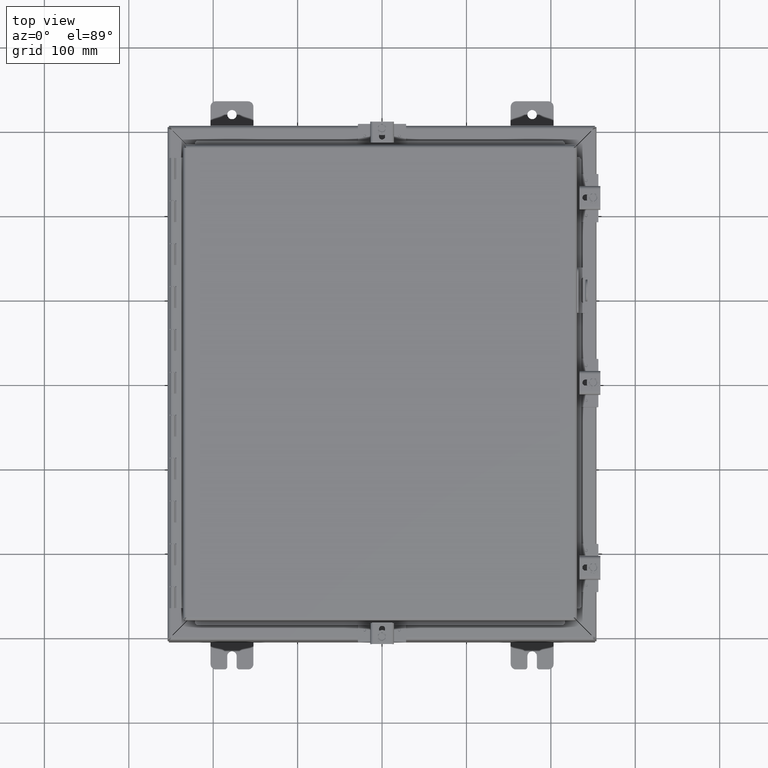
[diagram: clean part render]
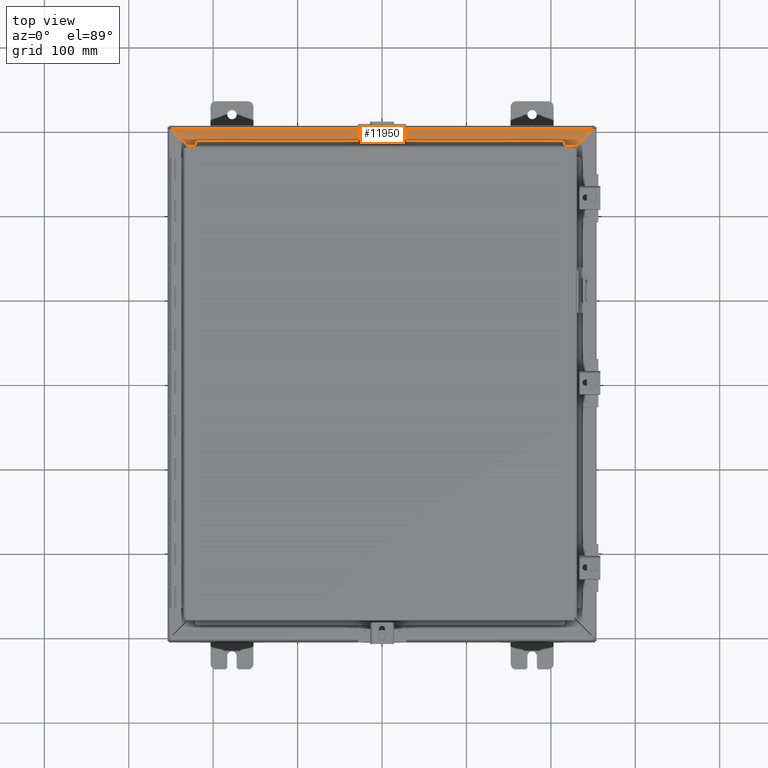
[diagram: same view with one face highlighted and labeled with its STEP entity id]
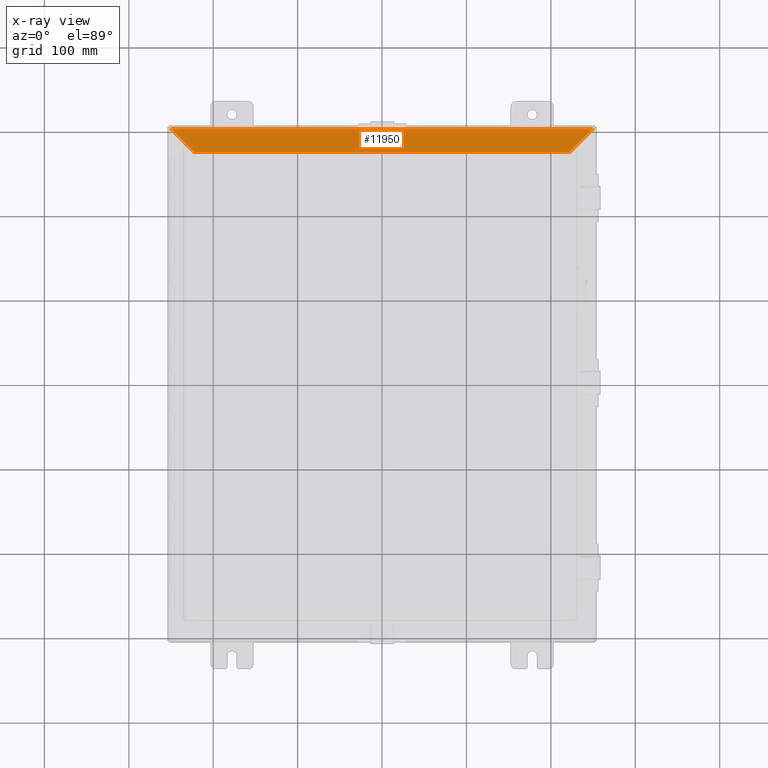
[diagram: x-ray of the same camera — body ghosted, the highlighted face saturated]
A machine part, top view. The second image highlights one B-rep face of the part: STEP entity #11950.
The next image is the same camera in x-ray: the body ghosted, the highlighted face saturated — about 0% of this face is hidden behind the body in this view.
In plain terms, the highlighted planar face has unit normal (0, 0, 1).
Its self-contained STEP definition (entity closure, byte-faithful):
#1194=PLANE('',#12706);
#1616=FACE_OUTER_BOUND('',#2314,.T.);
#2314=EDGE_LOOP('',(#8780,#8781,#8782,#8783));
#3100=LINE('',#17649,#4179);
#3122=LINE('',#18097,#4201);
#3123=LINE('',#18099,#4202);
#3124=LINE('',#18100,#4203);
#4179=VECTOR('',#14028,17.5137806999101);
#4201=VECTOR('',#14078,1.51250140495802);
#4202=VECTOR('',#14079,19.6527806999101);
#4203=VECTOR('',#14080,1.51250140495802);
#5693=VERTEX_POINT('',#17643);
#5694=VERTEX_POINT('',#17648);
#5721=VERTEX_POINT('',#18096);
#5722=VERTEX_POINT('',#18098);
#6863=EDGE_CURVE('',#5694,#5693,#3100,.T.);
#6916=EDGE_CURVE('',#5721,#5693,#3122,.T.);
#6917=EDGE_CURVE('',#5721,#5722,#3123,.T.);
#6918=EDGE_CURVE('',#5694,#5722,#3124,.T.);
#8780=ORIENTED_EDGE('',*,*,#6863,.T.);
#8781=ORIENTED_EDGE('',*,*,#6916,.F.);
#8782=ORIENTED_EDGE('',*,*,#6917,.T.);
#8783=ORIENTED_EDGE('',*,*,#6918,.F.);
#11950=ADVANCED_FACE('',(#1616),#1194,.T.);
#12706=AXIS2_PLACEMENT_3D('',#18095,#14076,#14077);
#14028=DIRECTION('',(1.,3.13975899770895E-16,-7.89411152477893E-18));
#14076=DIRECTION('center_axis',(7.89411152477831E-18,1.97696115296109E-15,
1.));
#14077=DIRECTION('ref_axis',(1.48733301237026E-16,-1.,2.25597318603832E-15));
#14078=DIRECTION('',(-0.707106781186547,-0.707106781186548,2.61740602688265E-15));
#14079=DIRECTION('',(-1.,-2.18668609874831E-16,7.89411152477874E-18));
#14080=DIRECTION('',(-0.707106781186547,0.707106781186547,-2.70555797393696E-15));
#17643=CARTESIAN_POINT('',(8.75689034995503,10.77775,6.00000000000001));
#17648=CARTESIAN_POINT('',(-8.75689034995503,10.77775,6.00000000000001));
#17649=CARTESIAN_POINT('',(4.37844517497751,10.77775,6.00000000000001));
#18095=CARTESIAN_POINT('Origin',(2.77812210717039E-16,11.3685559466454,
6.00000000000001));
#18096=CARTESIAN_POINT('',(9.82639034995502,11.84725,6.00000000000001));
#18097=CARTESIAN_POINT('',(9.82639034995502,11.84725,6.));
#18098=CARTESIAN_POINT('',(-9.82639034995502,11.84725,6.00000000000001));
#18099=CARTESIAN_POINT('',(1.02896699912481E-16,11.84725,6.00000000000001));
#18100=CARTESIAN_POINT('',(-9.82639034995502,11.84725,6.));